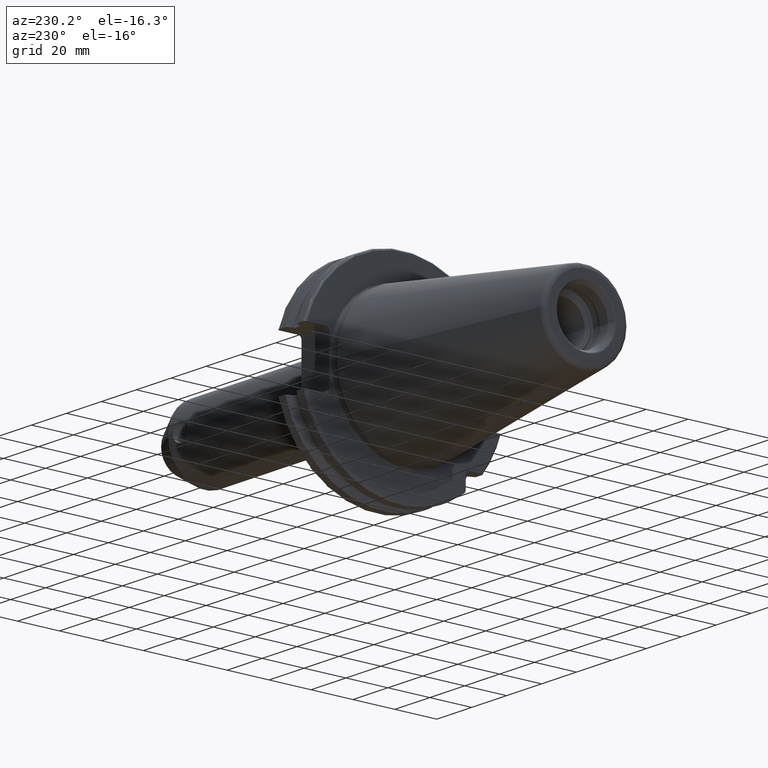
[diagram: clean part render]
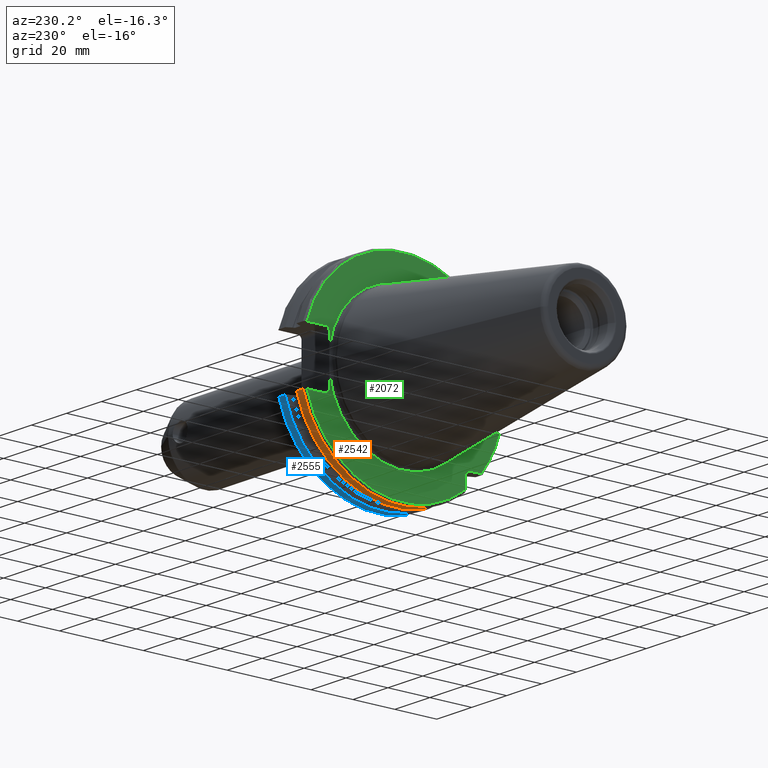
[diagram: same view with three faces highlighted in distinct colors, each labeled with its STEP entity id]
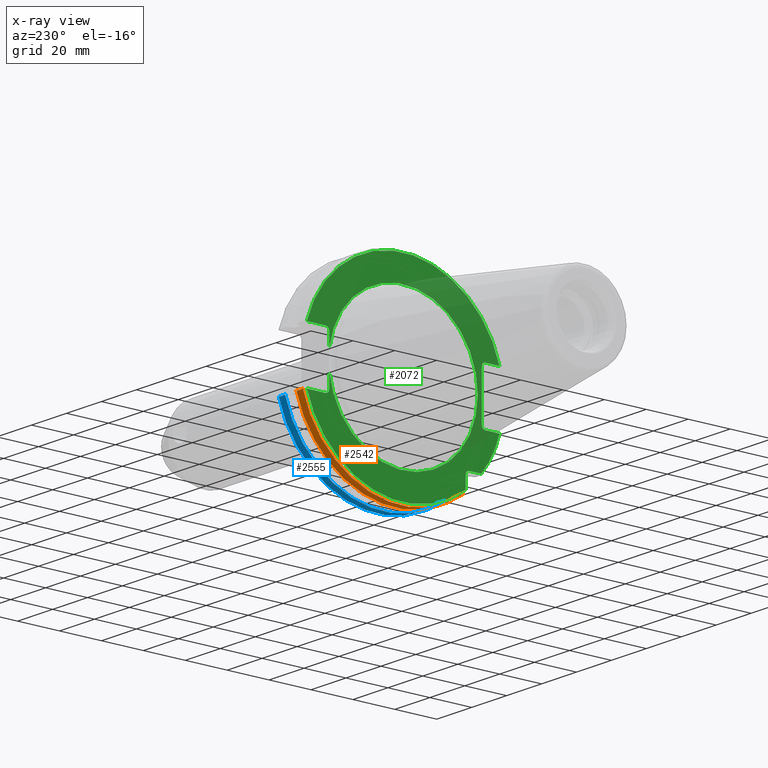
[diagram: x-ray of the same camera — body ghosted, the three highlighted faces saturated]
A machine part, auxiliary view with three faces highlighted in distinct colors.
The next image is the same camera in x-ray (body ghosted, the three faces saturated) — at least one of them is partly hidden behind the body in this view.
Their STEP definitions:

[orange] entity #2542 — the highlighted cylindrical surface (partial cylindrical patch) has radius 48.7375 mm, axis along (1, 0, 0).
#776=CARTESIAN_POINT('',(4.2E0,0.E0,0.E0));
#777=DIRECTION('',(-1.E0,0.E0,0.E0));
#778=DIRECTION('',(0.E0,9.643354064066E-1,-2.646832521159E-1));
#779=AXIS2_PLACEMENT_3D('',#776,#777,#778);
#808=DIRECTION('',(1.E0,0.E0,0.E0));
#809=VECTOR('',#808,3.734621614173E0);
#810=CARTESIAN_POINT('',(4.2E0,4.699929686974E1,-1.29E1));
#811=LINE('',#810,#809);
#812=DIRECTION('',(1.E0,0.E0,0.E0));
#813=VECTOR('',#812,3.734621614173E0);
#814=CARTESIAN_POINT('',(4.2E0,-2.985E1,-3.852689198793E1));
#815=LINE('',#814,#813);
#816=CARTESIAN_POINT('',(7.934621614173E0,0.E0,0.E0));
#817=DIRECTION('',(1.E0,0.E0,0.E0));
#818=DIRECTION('',(0.E0,-6.124647345473E-1,-7.904979120376E-1));
#819=AXIS2_PLACEMENT_3D('',#816,#817,#818);
#875=CARTESIAN_POINT('',(7.934621614173E0,4.699929686974E1,-1.29E1));
#882=CARTESIAN_POINT('',(7.934621614173E0,-2.985E1,-3.852689198793E1));
#1518=VERTEX_POINT('',#875);
#1528=CARTESIAN_POINT('',(4.2E0,4.699929686974E1,-1.29E1));
#1529=VERTEX_POINT('',#1528);
#1567=CARTESIAN_POINT('',(4.2E0,-2.985E1,-3.852689198793E1));
#1568=VERTEX_POINT('',#1567);
#1663=VERTEX_POINT('',#882);
#2530=CARTESIAN_POINT('',(-1.076325E2,0.E0,0.E0));
#2531=DIRECTION('',(1.E0,0.E0,0.E0));
#2532=DIRECTION('',(0.E0,-1.E0,0.E0));
#2533=AXIS2_PLACEMENT_3D('',#2530,#2531,#2532);
#2534=CYLINDRICAL_SURFACE('',#2533,4.87375E1);
#2535=ORIENTED_EDGE('',*,*,#2000,.F.);
#2536=ORIENTED_EDGE('',*,*,#2512,.T.);
#2537=ORIENTED_EDGE('',*,*,#2456,.T.);
#2539=ORIENTED_EDGE('',*,*,#2538,.T.);
#2540=EDGE_LOOP('',(#2535,#2536,#2537,#2539));
#2541=FACE_OUTER_BOUND('',#2540,.F.);
#2542=ADVANCED_FACE('',(#2541),#2534,.T.);
#780=CIRCLE('',#779,4.87375E1);
#820=CIRCLE('',#819,4.87375E1);
#2000=EDGE_CURVE('',#1529,#1518,#811,.T.);
#2456=EDGE_CURVE('',#1568,#1663,#815,.T.);
#2512=EDGE_CURVE('',#1529,#1568,#780,.T.);
#2538=EDGE_CURVE('',#1663,#1518,#820,.T.);

[blue] entity #2555 — the highlighted cylindrical surface (partial cylindrical patch) has radius 48.7375 mm, axis along (1, 0, 0).
#821=DIRECTION('',(1.E0,0.E0,0.E0));
#822=VECTOR('',#821,3.634621614173E0);
#823=CARTESIAN_POINT('',(1.441537838583E1,4.699929686974E1,-1.29E1));
#824=LINE('',#823,#822);
#825=CARTESIAN_POINT('',(1.441537838583E1,0.E0,0.E0));
#826=DIRECTION('',(1.E0,0.E0,0.E0));
#827=DIRECTION('',(0.E0,-6.124647345473E-1,-7.904979120376E-1));
#828=AXIS2_PLACEMENT_3D('',#825,#826,#827);
#830=DIRECTION('',(1.E0,0.E0,0.E0));
#831=VECTOR('',#830,3.634621614173E0);
#832=CARTESIAN_POINT('',(1.441537838583E1,-2.985E1,-3.852689198793E1));
#833=LINE('',#832,#831);
#834=CARTESIAN_POINT('',(1.805E1,0.E0,0.E0));
#835=DIRECTION('',(-1.E0,0.E0,0.E0));
#836=DIRECTION('',(0.E0,9.643354064066E-1,-2.646832521159E-1));
#837=AXIS2_PLACEMENT_3D('',#834,#835,#836);
#903=CARTESIAN_POINT('',(1.441537838583E1,4.699929686974E1,-1.29E1));
#915=CARTESIAN_POINT('',(1.441537838583E1,-2.985E1,-3.852689198793E1));
#1516=VERTEX_POINT('',#903);
#1530=CARTESIAN_POINT('',(1.805E1,4.699929686974E1,-1.29E1));
#1531=VERTEX_POINT('',#1530);
#1565=CARTESIAN_POINT('',(1.805E1,-2.985E1,-3.852689198793E1));
#1566=VERTEX_POINT('',#1565);
#1662=VERTEX_POINT('',#915);
#2543=CARTESIAN_POINT('',(-1.076325E2,0.E0,0.E0));
#2544=DIRECTION('',(1.E0,0.E0,0.E0));
#2545=DIRECTION('',(0.E0,-1.E0,0.E0));
#2546=AXIS2_PLACEMENT_3D('',#2543,#2544,#2545);
#2547=CYLINDRICAL_SURFACE('',#2546,4.87375E1);
#2548=ORIENTED_EDGE('',*,*,#2016,.F.);
#2550=ORIENTED_EDGE('',*,*,#2549,.F.);
#2551=ORIENTED_EDGE('',*,*,#2445,.T.);
#2552=ORIENTED_EDGE('',*,*,#1967,.F.);
#2553=EDGE_LOOP('',(#2548,#2550,#2551,#2552));
#2554=FACE_OUTER_BOUND('',#2553,.F.);
#2555=ADVANCED_FACE('',(#2554),#2547,.T.);
#829=CIRCLE('',#828,4.87375E1);
#838=CIRCLE('',#837,4.87375E1);
#1967=EDGE_CURVE('',#1531,#1566,#838,.T.);
#2016=EDGE_CURVE('',#1516,#1531,#824,.T.);
#2445=EDGE_CURVE('',#1662,#1566,#833,.T.);
#2549=EDGE_CURVE('',#1662,#1516,#829,.T.);

[green] entity #2072 — the highlighted planar face has unit normal (1, 0, 0).
#105=CARTESIAN_POINT('',(3.2E0,3.53E1,-4.414818795828E0));
#117=CARTESIAN_POINT('',(3.2E0,0.E0,0.E0));
#118=DIRECTION('',(-1.E0,0.E0,0.E0));
#119=DIRECTION('',(0.E0,9.922698524245E-1,-1.240989120402E-1));
#120=AXIS2_PLACEMENT_3D('',#117,#118,#119);
#135=CARTESIAN_POINT('',(3.2E0,3.705E1,1.115E1));
#136=DIRECTION('',(1.E0,0.E0,0.E0));
#137=DIRECTION('',(0.E0,0.E0,1.E0));
#138=AXIS2_PLACEMENT_3D('',#135,#136,#137);
#195=CARTESIAN_POINT('',(3.2E0,-3.925E1,-1.115E1));
#196=DIRECTION('',(1.E0,0.E0,0.E0));
#197=DIRECTION('',(0.E0,0.E0,-1.E0));
#198=AXIS2_PLACEMENT_3D('',#195,#196,#197);
#266=CARTESIAN_POINT('',(3.2E0,3.705E1,-1.115E1));
#267=DIRECTION('',(1.E0,0.E0,0.E0));
#268=DIRECTION('',(0.E0,-1.E0,0.E0));
#269=AXIS2_PLACEMENT_3D('',#266,#267,#268);
#271=DIRECTION('',(0.E0,1.E0,0.E0));
#272=VECTOR('',#271,6.711493733886E0);
#273=CARTESIAN_POINT('',(3.2E0,-4.596149373389E1,1.29E1));
#274=LINE('',#273,#272);
#275=DIRECTION('',(0.E0,0.E0,1.E0));
#276=VECTOR('',#275,2.23E1);
#277=CARTESIAN_POINT('',(3.2E0,-3.75E1,-1.115E1));
#278=LINE('',#277,#276);
#279=DIRECTION('',(0.E0,1.E0,0.E0));
#280=VECTOR('',#279,6.711493733886E0);
#281=CARTESIAN_POINT('',(3.2E0,-4.596149373389E1,-1.29E1));
#282=LINE('',#281,#280);
#283=CARTESIAN_POINT('',(3.2E0,0.E0,0.E0));
#284=DIRECTION('',(-1.E0,0.E0,0.E0));
#285=DIRECTION('',(0.E0,-7.803888060170E-1,-6.252945797329E-1));
#286=AXIS2_PLACEMENT_3D('',#283,#284,#285);
#288=DIRECTION('',(0.E0,-1.E0,0.E0));
#289=VECTOR('',#288,5.653810627237E0);
#290=CARTESIAN_POINT('',(3.2E0,-3.16E1,-2.985E1));
#291=LINE('',#290,#289);
#292=DIRECTION('',(0.E0,0.E0,1.E0));
#293=VECTOR('',#292,5.653810627237E0);
#294=CARTESIAN_POINT('',(3.2E0,-2.985E1,-3.725381062724E1));
#295=LINE('',#294,#293);
#296=CARTESIAN_POINT('',(3.2E0,0.E0,0.E0));
#297=DIRECTION('',(-1.E0,0.E0,0.E0));
#298=DIRECTION('',(0.E0,9.627964123359E-1,-2.702278083268E-1));
#299=AXIS2_PLACEMENT_3D('',#296,#297,#298);
#301=DIRECTION('',(0.E0,-1.E0,0.E0));
#302=VECTOR('',#301,8.911493733886E0);
#303=CARTESIAN_POINT('',(3.2E0,4.596149373389E1,-1.29E1));
#304=LINE('',#303,#302);
#305=DIRECTION('',(0.E0,0.E0,-1.E0));
#306=VECTOR('',#305,6.735181204172E0);
#307=CARTESIAN_POINT('',(3.2E0,3.53E1,-4.414818795828E0));
#308=LINE('',#307,#306);
#309=DIRECTION('',(0.E0,0.E0,-1.E0));
#310=VECTOR('',#309,6.735181204172E0);
#311=CARTESIAN_POINT('',(3.2E0,3.53E1,1.115E1));
#312=LINE('',#311,#310);
#313=DIRECTION('',(0.E0,-1.E0,0.E0));
#314=VECTOR('',#313,8.911493733886E0);
#315=CARTESIAN_POINT('',(3.2E0,4.596149373389E1,1.29E1));
#316=LINE('',#315,#314);
#317=CARTESIAN_POINT('',(3.2E0,0.E0,0.E0));
#318=DIRECTION('',(1.E0,0.E0,0.E0));
#319=DIRECTION('',(0.E0,9.627964123359E-1,2.702278083268E-1));
#320=AXIS2_PLACEMENT_3D('',#317,#318,#319);
#331=CARTESIAN_POINT('',(3.2E0,-3.925E1,1.115E1));
#332=DIRECTION('',(1.E0,0.E0,0.E0));
#333=DIRECTION('',(0.E0,1.E0,0.E0));
#334=AXIS2_PLACEMENT_3D('',#331,#332,#333);
#345=CARTESIAN_POINT('',(3.2E0,4.596149373389E1,1.29E1));
#352=CARTESIAN_POINT('',(3.2E0,-4.596149373389E1,1.29E1));
#746=CARTESIAN_POINT('',(3.2E0,-3.16E1,-3.16E1));
#747=DIRECTION('',(1.E0,0.E0,0.E0));
#748=DIRECTION('',(0.E0,1.E0,0.E0));
#749=AXIS2_PLACEMENT_3D('',#746,#747,#748);
#755=CARTESIAN_POINT('',(3.2E0,4.596149373389E1,-1.29E1));
#790=CARTESIAN_POINT('',(3.2E0,-4.596149373389E1,-1.29E1));
#797=CARTESIAN_POINT('',(3.2E0,-3.725381062724E1,-2.985E1));
#936=CARTESIAN_POINT('',(3.2E0,3.53E1,4.414818795828E0));
#947=CARTESIAN_POINT('',(3.2E0,0.E0,0.E0));
#948=DIRECTION('',(1.E0,0.E0,0.E0));
#949=DIRECTION('',(0.E0,9.922698524245E-1,1.240989120402E-1));
#950=AXIS2_PLACEMENT_3D('',#947,#948,#949);
#1410=CARTESIAN_POINT('',(3.2E0,-3.5575E1,0.E0));
#1412=VERTEX_POINT('',#1410);
#1536=VERTEX_POINT('',#936);
#1538=VERTEX_POINT('',#105);
#1541=VERTEX_POINT('',#345);
#1542=VERTEX_POINT('',#352);
#1545=VERTEX_POINT('',#755);
#1546=VERTEX_POINT('',#790);
#1569=CARTESIAN_POINT('',(3.2E0,-2.985E1,-3.725381062724E1));
#1570=VERTEX_POINT('',#1569);
#1572=CARTESIAN_POINT('',(3.2E0,-3.75E1,-1.115E1));
#1574=VERTEX_POINT('',#1572);
#1576=CARTESIAN_POINT('',(3.2E0,-3.925E1,-1.29E1));
#1578=VERTEX_POINT('',#1576);
#1580=CARTESIAN_POINT('',(3.2E0,-3.925E1,1.29E1));
#1582=VERTEX_POINT('',#1580);
#1584=CARTESIAN_POINT('',(3.2E0,-3.75E1,1.115E1));
#1586=VERTEX_POINT('',#1584);
#1588=CARTESIAN_POINT('',(3.2E0,3.53E1,1.115E1));
#1590=VERTEX_POINT('',#1588);
#1592=CARTESIAN_POINT('',(3.2E0,3.705E1,1.29E1));
#1594=VERTEX_POINT('',#1592);
#1596=CARTESIAN_POINT('',(3.2E0,3.705E1,-1.29E1));
#1598=VERTEX_POINT('',#1596);
#1600=CARTESIAN_POINT('',(3.2E0,3.53E1,-1.115E1));
#1602=VERTEX_POINT('',#1600);
#1607=CARTESIAN_POINT('',(3.2E0,-2.985E1,-3.16E1));
#1608=CARTESIAN_POINT('',(3.2E0,-3.16E1,-2.985E1));
#1609=VERTEX_POINT('',#1607);
#1610=VERTEX_POINT('',#1608);
#1669=VERTEX_POINT('',#797);
#2036=CARTESIAN_POINT('',(3.2E0,0.E0,0.E0));
#2037=DIRECTION('',(1.E0,0.E0,0.E0));
#2038=DIRECTION('',(0.E0,-1.E0,0.E0));
#2039=AXIS2_PLACEMENT_3D('',#2036,#2037,#2038);
#2040=PLANE('',#2039);
#2042=ORIENTED_EDGE('',*,*,#2041,.T.);
#2044=ORIENTED_EDGE('',*,*,#2043,.F.);
#2045=ORIENTED_EDGE('',*,*,#1904,.F.);
#2046=ORIENTED_EDGE('',*,*,#1921,.F.);
#2047=ORIENTED_EDGE('',*,*,#1955,.F.);
#2049=ORIENTED_EDGE('',*,*,#2048,.F.);
#2051=ORIENTED_EDGE('',*,*,#2050,.F.);
#2053=ORIENTED_EDGE('',*,*,#2052,.F.);
#2055=ORIENTED_EDGE('',*,*,#2054,.F.);
#2057=ORIENTED_EDGE('',*,*,#2056,.F.);
#2058=ORIENTED_EDGE('',*,*,#1996,.T.);
#2059=ORIENTED_EDGE('',*,*,#2031,.F.);
#2060=ORIENTED_EDGE('',*,*,#1829,.F.);
#2061=ORIENTED_EDGE('',*,*,#1812,.T.);
#2063=ORIENTED_EDGE('',*,*,#2062,.F.);
#2064=ORIENTED_EDGE('',*,*,#1824,.F.);
#2065=ORIENTED_EDGE('',*,*,#1848,.F.);
#2067=ORIENTED_EDGE('',*,*,#2066,.F.);
#2069=ORIENTED_EDGE('',*,*,#2068,.T.);
#2070=EDGE_LOOP('',(#2042,#2044,#2045,#2046,#2047,#2049,#2051,#2053,#2055,#2057,
#2058,#2059,#2060,#2061,#2063,#2064,#2065,#2067,#2069));
#2071=FACE_OUTER_BOUND('',#2070,.F.);
#2072=ADVANCED_FACE('',(#2071),#2040,.F.);
#121=CIRCLE('',#120,3.5575E1);
#139=CIRCLE('',#138,1.75E0);
#199=CIRCLE('',#198,1.75E0);
#270=CIRCLE('',#269,1.75E0);
#287=CIRCLE('',#286,4.77375E1);
#300=CIRCLE('',#299,4.77375E1);
#321=CIRCLE('',#320,4.77375E1);
#335=CIRCLE('',#334,1.75E0);
#750=CIRCLE('',#749,1.75E0);
#951=CIRCLE('',#950,3.5575E1);
#1812=EDGE_CURVE('',#1538,#1412,#121,.T.);
#1824=EDGE_CURVE('',#1590,#1536,#312,.T.);
#1829=EDGE_CURVE('',#1538,#1602,#308,.T.);
#1848=EDGE_CURVE('',#1594,#1590,#139,.T.);
#1904=EDGE_CURVE('',#1574,#1586,#278,.T.);
#1921=EDGE_CURVE('',#1578,#1574,#199,.T.);
#1955=EDGE_CURVE('',#1546,#1578,#282,.T.);
#1996=EDGE_CURVE('',#1545,#1598,#304,.T.);
#2031=EDGE_CURVE('',#1602,#1598,#270,.T.);
#2041=EDGE_CURVE('',#1542,#1582,#274,.T.);
#2043=EDGE_CURVE('',#1586,#1582,#335,.T.);
#2048=EDGE_CURVE('',#1669,#1546,#287,.T.);
#2050=EDGE_CURVE('',#1610,#1669,#291,.T.);
#2052=EDGE_CURVE('',#1609,#1610,#750,.T.);
#2054=EDGE_CURVE('',#1570,#1609,#295,.T.);
#2056=EDGE_CURVE('',#1545,#1570,#300,.T.);
#2062=EDGE_CURVE('',#1536,#1412,#951,.T.);
#2066=EDGE_CURVE('',#1541,#1594,#316,.T.);
#2068=EDGE_CURVE('',#1541,#1542,#321,.T.);